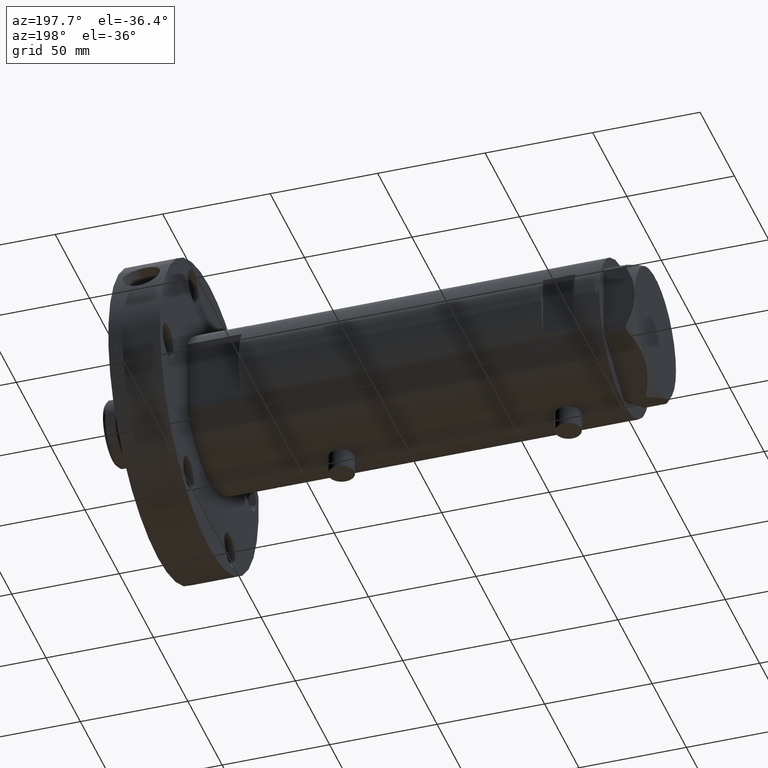
[diagram: clean part render]
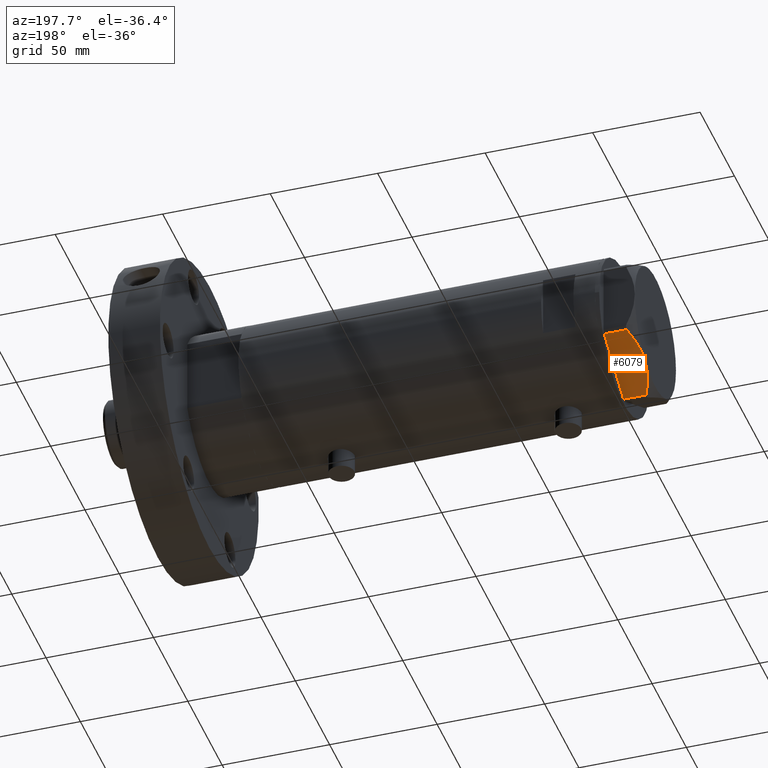
[diagram: same view with one face highlighted and labeled with its STEP entity id]
A machine part, auxiliary view. The second image highlights one B-rep face of the part: STEP entity #6079.
In plain terms, the highlighted planar face has unit normal (0, -0.5, 0.866).
Its self-contained STEP definition (entity closure, byte-faithful):
#33 = CARTESIAN_POINT ( 'NONE',  ( 16.22616138060133295, 25.27283751037305493, 14.47500996539161555 ) ) ;
#64 = CARTESIAN_POINT ( 'NONE',  ( 29.99999999999999289, 17.32050807568878170, 0.000000000000000000 ) ) ;
#113 = VECTOR ( 'NONE', #5295, 1000.000000000000227 ) ;
#118 = CARTESIAN_POINT ( 'NONE',  ( 6.639151835535789026, 30.80790005194015535, 12.99122625442314671 ) ) ;
#297 = ORIENTED_EDGE ( 'NONE', *, *, #3600, .T. ) ;
#448 = CARTESIAN_POINT ( 'NONE',  ( 0.9699484522423541533, 34.08101615137535845, 10.40518423703812090 ) ) ;
#613 = CARTESIAN_POINT ( 'NONE',  ( 15.61187731150015878, 25.62749458302751293, 14.50000000000000355 ) ) ;
#779 = EDGE_CURVE ( 'NONE', #4586, #4313, #1787, .T. ) ;
#901 = ORIENTED_EDGE ( 'NONE', *, *, #6091, .F. ) ;
#903 = VERTEX_POINT ( 'NONE', #448 ) ;
#919 = CARTESIAN_POINT ( 'NONE',  ( 19.88494945387372681, 23.16043523136144699, 14.00566141361760941 ) ) ;
#972 = CARTESIAN_POINT ( 'NONE',  ( 12.56968319190193029, 27.38390617690464879, 14.50000000000000711 ) ) ;
#1098 = CARTESIAN_POINT ( 'NONE',  ( 4.902385341345770975, 31.81062265488028018, 12.31959434659136576 ) ) ;
#1367 = CARTESIAN_POINT ( 'NONE',  ( 0.9699484522385712904, 34.08101615137753981, 0.000000000000000000 ) ) ;
#1568 = B_SPLINE_CURVE_WITH_KNOTS ( 'NONE', 3,
 ( #3706, #5606, #1860, #5643, #919, #3864, #2011, #33, #613, #2508 ),
 .UNSPECIFIED., .F., .F.,
 ( 4, 2, 2, 2, 4 ),
 ( 0.001230196178133409956, 0.009592363676680764825, 0.01377344742595444649, 0.01586398930059127951, 0.01795453117522811601 ),
 .UNSPECIFIED. ) ;
#1576 = PLANE ( 'NONE',  #5947 ) ;
#1659 = DIRECTION ( 'NONE',  ( 0.000000000000000000, 0.000000000000000000, -1.000000000000000000 ) ) ;
#1682 = B_SPLINE_CURVE_WITH_KNOTS ( 'NONE', 3,
 ( #3374, #972, #5790, #3435, #118, #3343, #1098, #3924, #3464, #4423 ),
 .UNSPECIFIED., .F., .F.,
 ( 4, 2, 2, 2, 4 ),
 ( 0.01795453117522811601, 0.02625795893839555362, 0.02833381587918740868, 0.03040967281997927762, 0.03456138670156298776 ),
 .UNSPECIFIED. ) ;
#1787 = LINE ( 'NONE', #3665, #4026 ) ;
#1860 = CARTESIAN_POINT ( 'NONE',  ( 24.56959650245796567, 20.45575299680294634, 12.63511531451932690 ) ) ;
#1982 = CARTESIAN_POINT ( 'NONE',  ( 29.03005154776155194, 17.88050807568870226, 10.40518423703596085 ) ) ;
#2011 = CARTESIAN_POINT ( 'NONE',  ( 17.45962150578836258, 24.56069897506165489, 14.37423503257921986 ) ) ;
#2034 = CARTESIAN_POINT ( 'NONE',  ( 29.99999999999999289, 17.32050807568878170, 14.50000000000000000 ) ) ;
#2438 = DIRECTION ( 'NONE',  ( -0.4999999999999998335, -0.8660254037844388186, 0.000000000000000000 ) ) ;
#2508 = CARTESIAN_POINT ( 'NONE',  ( 14.99999999999999467, 25.98076211353316367, 14.50000000000000000 ) ) ;
#2638 = EDGE_LOOP ( 'NONE', ( #5269, #3538, #5165, #297, #901 ) ) ;
#2851 = DIRECTION ( 'NONE',  ( 0.000000000000000000, 0.000000000000000000, 1.000000000000000000 ) ) ;
#2887 = LINE ( 'NONE', #64, #113 ) ;
#2913 = CARTESIAN_POINT ( 'NONE',  ( 14.99999999999999467, 25.98076211353316367, 14.50000000000000000 ) ) ;
#3343 = CARTESIAN_POINT ( 'NONE',  ( 5.477433827014328571, 31.47861825688246640, 12.55468001512311105 ) ) ;
#3374 = CARTESIAN_POINT ( 'NONE',  ( 14.99999999999999467, 25.98076211353316367, 14.50000000000000000 ) ) ;
#3435 = CARTESIAN_POINT ( 'NONE',  ( 7.227334865373877371, 30.46831242133036355, 13.19311392138218508 ) ) ;
#3464 = CARTESIAN_POINT ( 'NONE',  ( 2.073315687469442281, 33.44398678110199086, 11.01056656432865388 ) ) ;
#3502 = CARTESIAN_POINT ( 'NONE',  ( 29.03005154776139207, 17.88050807568879463, 0.000000000000000000 ) ) ;
#3538 = ORIENTED_EDGE ( 'NONE', *, *, #779, .T. ) ;
#3600 = EDGE_CURVE ( 'NONE', #4491, #903, #5679, .T. ) ;
#3665 = CARTESIAN_POINT ( 'NONE',  ( 29.03005154776139207, 17.88050807568879463, 14.50000000000000000 ) ) ;
#3706 = CARTESIAN_POINT ( 'NONE',  ( 29.03005154776155194, 17.88050807568870226, 10.40518423703596085 ) ) ;
#3707 = EDGE_CURVE ( 'NONE', #4586, #4679, #1568, .T. ) ;
#3864 = CARTESIAN_POINT ( 'NONE',  ( 18.07068105770096267, 24.20790357827400996, 14.29910535634586743 ) ) ;
#3924 = CARTESIAN_POINT ( 'NONE',  ( 3.192653970408704023, 32.79773652213274460, 11.56973717813891156 ) ) ;
#4026 = VECTOR ( 'NONE', #1659, 1000.000000000000000 ) ;
#4313 = VERTEX_POINT ( 'NONE', #3502 ) ;
#4423 = CARTESIAN_POINT ( 'NONE',  ( 0.9699484522423541533, 34.08101615137535845, 10.40518423703812090 ) ) ;
#4491 = VERTEX_POINT ( 'NONE', #1367 ) ;
#4560 = VECTOR ( 'NONE', #2851, 1000.000000000000000 ) ;
#4586 = VERTEX_POINT ( 'NONE', #1982 ) ;
#4679 = VERTEX_POINT ( 'NONE', #2913 ) ;
#5078 = CARTESIAN_POINT ( 'NONE',  ( 0.9699484522385712904, 34.08101615137753981, 14.50000000000000000 ) ) ;
#5165 = ORIENTED_EDGE ( 'NONE', *, *, #5685, .T. ) ;
#5269 = ORIENTED_EDGE ( 'NONE', *, *, #3707, .F. ) ;
#5295 = DIRECTION ( 'NONE',  ( -0.8660254037844387076, 0.4999999999999997780, 0.000000000000000000 ) ) ;
#5606 = CARTESIAN_POINT ( 'NONE',  ( 26.82462797925471065, 19.15380996664327284, 11.61522964162834981 ) ) ;
#5643 = CARTESIAN_POINT ( 'NONE',  ( 21.07077273125423034, 22.47579984295449407, 13.71922620632299505 ) ) ;
#5679 = LINE ( 'NONE', #5078, #4560 ) ;
#5685 = EDGE_CURVE ( 'NONE', #4313, #4491, #2887, .T. ) ;
#5703 = DIRECTION ( 'NONE',  ( 0.8660254037844387076, -0.4999999999999997780, 0.000000000000000000 ) ) ;
#5790 = CARTESIAN_POINT ( 'NONE',  ( 10.17780078270602040, 28.76486012972386064, 14.10092492974158773 ) ) ;
#5817 = FACE_OUTER_BOUND ( 'NONE', #2638, .T. ) ;
#5947 = AXIS2_PLACEMENT_3D ( 'NONE', #2034, #2438, #5703 ) ;
#6079 = ADVANCED_FACE ( 'NONE', ( #5817 ), #1576, .F. ) ;
#6091 = EDGE_CURVE ( 'NONE', #4679, #903, #1682, .T. ) ;